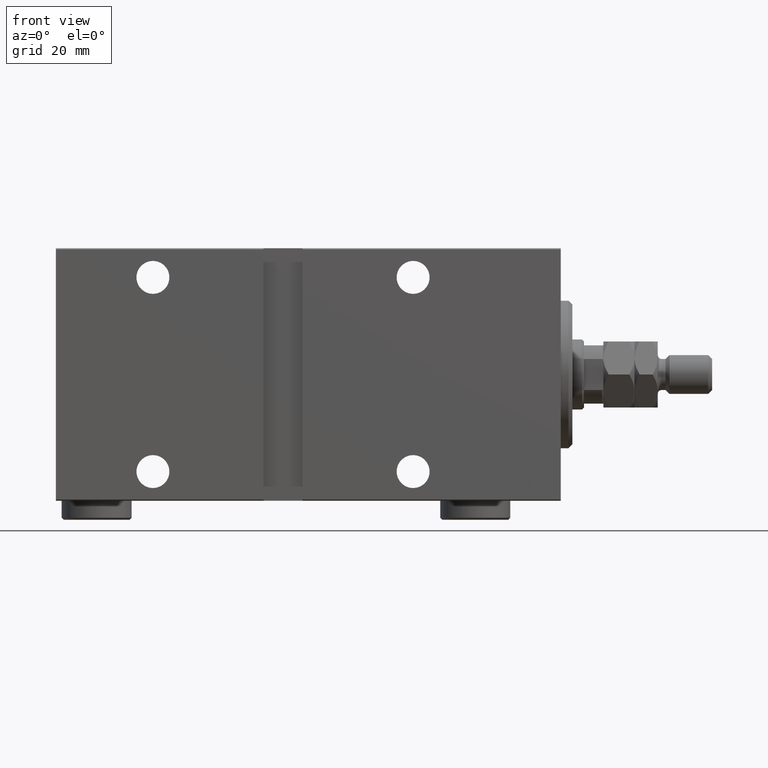
[diagram: clean part render]
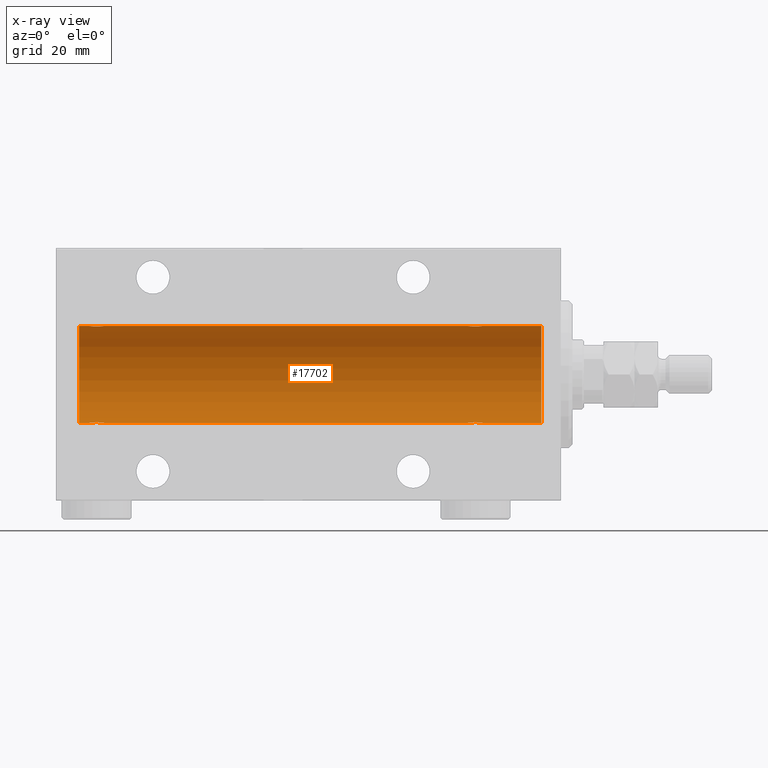
[diagram: x-ray — body ghosted, one internal face saturated and labeled with its STEP entity id]
A machine part, front view, then the same camera in x-ray: the body is ghosted and one INTERNAL B-rep face — a face not visible from any outside direction — is saturated and labeled: STEP entity #17702.
In plain terms, the highlighted cylindrical surface (partial cylindrical patch) has radius 12.5 mm, axis along (1, 0, -0).
Its self-contained STEP definition (entity closure, byte-faithful):
#237 = CARTESIAN_POINT ( 'NONE',  ( 124.0000000000000000, 1.530808498934191521E-15, -12.50000000000000000 ) ) ;
#639 = EDGE_CURVE ( 'NONE', #6510, #24753, #38111, .T. ) ;
#815 = CARTESIAN_POINT ( 'NONE',  ( 21.86910032676576421, -2.000082296475566679, -12.33894933996983490 ) ) ;
#1040 = CARTESIAN_POINT ( 'NONE',  ( 20.99900207901491811, -1.736403706023273097, -12.37902502246767966 ) ) ;
#1279 = CARTESIAN_POINT ( 'NONE',  ( 20.40255225308977671, -1.231226695485372336, -12.44059298055988627 ) ) ;
#1479 = CARTESIAN_POINT ( 'NONE',  ( 118.9830627330237434, -1.936441098420713214, -12.34912369794528963 ) ) ;
#1706 = CARTESIAN_POINT ( 'NONE',  ( 120.7202714989742418, -1.589951752150277509, -12.39868561261689273 ) ) ;
#1943 = DIRECTION ( 'NONE',  ( 0.000000000000000000, 0.000000000000000000, 1.000000000000000000 ) ) ;
#2279 = CARTESIAN_POINT ( 'NONE',  ( 20.00000000000000000, -0.2612140938986765581, 12.50000000000000000 ) ) ;
#2559 = VECTOR ( 'NONE', #22762, 1000.000000000000000 ) ;
#3902 = CARTESIAN_POINT ( 'NONE',  ( 121.5000000000000284, 3.163483401492493339E-15, 12.50000000000000000 ) ) ;
#4130 = CARTESIAN_POINT ( 'NONE',  ( 118.6112527420296772, -1.796480516834681573, 12.37033750336835958 ) ) ;
#4206 = VECTOR ( 'NONE', #40096, 1000.000000000000000 ) ;
#4497 = CARTESIAN_POINT ( 'NONE',  ( 124.0000000000000000, 1.530808498934191521E-15, -12.50000000000000000 ) ) ;
#4741 = CARTESIAN_POINT ( 'NONE',  ( 119.2390650271439370, -1.987194304939082556, -12.34105826212746138 ) ) ;
#4761 = CARTESIAN_POINT ( 'NONE',  ( 22.64643896963591985, -1.897190184049187378, -12.35529285772521924 ) ) ;
#4814 = CARTESIAN_POINT ( 'NONE',  ( 118.2797285010258008, -1.589951752150278397, 12.39868561261688740 ) ) ;
#4840 = AXIS2_PLACEMENT_3D ( 'NONE', #27053, #41267, #1943 ) ;
#4918 = AXIS2_PLACEMENT_3D ( 'NONE', #30456, #34185, #41411 ) ;
#5220 = CARTESIAN_POINT ( 'NONE',  ( 23.94744340572329833, -0.5247436444070325834, -12.49130933415156619 ) ) ;
#5748 = EDGE_CURVE ( 'NONE', #42202, #18718, #19398, .T. ) ;
#5771 = VERTEX_POINT ( 'NONE', #23566 ) ;
#5879 = CARTESIAN_POINT ( 'NONE',  ( 117.5000000000000142, -1.169483437805093529E-14, -12.50000000000000000 ) ) ;
#6226 = CARTESIAN_POINT ( 'NONE',  ( 21.86659749548704212, -1.999916920503819862, 12.33897614545467469 ) ) ;
#6454 = CARTESIAN_POINT ( 'NONE',  ( 23.99999999999998934, -0.2646816682749779659, 12.49999999999999822 ) ) ;
#6460 = CARTESIAN_POINT ( 'NONE',  ( 121.2356307801957769, -1.002396200863557185, -12.46022444231050308 ) ) ;
#6510 = VERTEX_POINT ( 'NONE', #34568 ) ;
#7620 = CARTESIAN_POINT ( 'NONE',  ( 118.8535610303640624, -1.897190184049181161, 12.35529285772521213 ) ) ;
#7853 = CARTESIAN_POINT ( 'NONE',  ( 117.7643692198042658, -1.002396200863564291, 12.46022444231050663 ) ) ;
#8016 = CARTESIAN_POINT ( 'NONE',  ( 117.5000000000000142, -1.169483437805093529E-14, -12.50000000000000000 ) ) ;
#8089 = CARTESIAN_POINT ( 'NONE',  ( 117.9101890977171223, -1.220538259806350778, 12.44075068685996754 ) ) ;
#8141 = VERTEX_POINT ( 'NONE', #28612 ) ;
#8263 = CARTESIAN_POINT ( 'NONE',  ( 23.22027149897420273, -1.589951752150274178, -12.39868561261689273 ) ) ;
#8351 = LINE ( 'NONE', #22531, #2559 ) ;
#8417 = EDGE_CURVE ( 'NONE', #14792, #5771, #25083, .T. ) ;
#8700 = CARTESIAN_POINT ( 'NONE',  ( 118.2814588045806232, -1.591305132013882462, -12.39851226212235957 ) ) ;
#8923 = CARTESIAN_POINT ( 'NONE',  ( 120.0196147235787834, -1.935716533151644825, -12.34923763528285079 ) ) ;
#9031 = CARTESIAN_POINT ( 'NONE',  ( 22.13089967323422158, -2.000082296475567567, 12.33894933996983134 ) ) ;
#9252 = DIRECTION ( 'NONE',  ( -1.000000000000000000, 0.000000000000000000, 0.000000000000000000 ) ) ;
#9359 = EDGE_CURVE ( 'NONE', #26318, #16629, #8351, .T. ) ;
#9385 = CARTESIAN_POINT ( 'NONE',  ( 124.0000000000000000, 0.000000000000000000, 12.50000000000000000 ) ) ;
#9533 = CARTESIAN_POINT ( 'NONE',  ( 5.000000000000004441, 0.000000000000000000, 12.50000000000000000 ) ) ;
#9935 = CARTESIAN_POINT ( 'NONE',  ( 23.21854119541937678, -1.591305132013879131, 12.39851226212236135 ) ) ;
#10713 = ORIENTED_EDGE ( 'NONE', *, *, #21648, .T. ) ;
#11101 = CARTESIAN_POINT ( 'NONE',  ( 19.99999999999999645, -7.265724481447607133E-23, 12.50000000000000000 ) ) ;
#11109 = CARTESIAN_POINT ( 'NONE',  ( 120.8211671285144604, -1.507135374967687458, 12.40915432986586886 ) ) ;
#11203 = CARTESIAN_POINT ( 'NONE',  ( 20.00000000000000000, -0.2646816682749830729, -12.50000000000000000 ) ) ;
#11328 = CARTESIAN_POINT ( 'NONE',  ( 118.1770005689227219, -1.505544071529930639, 12.40934942683854025 ) ) ;
#11446 = EDGE_CURVE ( 'NONE', #8141, #11733, #16569, .T. ) ;
#11733 = VERTEX_POINT ( 'NONE', #37581 ) ;
#11743 = CARTESIAN_POINT ( 'NONE',  ( 23.73563078019576977, -1.002396200863559628, -12.46022444231050663 ) ) ;
#11905 = ORIENTED_EDGE ( 'NONE', *, *, #8417, .F. ) ;
#11950 = CARTESIAN_POINT ( 'NONE',  ( 119.7639137310243882, -1.986793270638199882, -12.34112317291865146 ) ) ;
#12022 = CARTESIAN_POINT ( 'NONE',  ( 117.5000000000000142, -7.266434456262306043E-23, 12.50000000000000000 ) ) ;
#12178 = CARTESIAN_POINT ( 'NONE',  ( 117.4999999999999716, -0.2646816682749930094, -12.49999999999999289 ) ) ;
#12598 = EDGE_LOOP ( 'NONE', ( #24567, #40886, #26666, #10713, #40365, #26357, #32195, #20093, #23382, #11905, #39737, #30287 ) ) ;
#12816 = EDGE_CURVE ( 'NONE', #36914, #8141, #13804, .T. ) ;
#12848 = DIRECTION ( 'NONE',  ( -1.000000000000000000, -0.000000000000000000, -0.000000000000000000 ) ) ;
#12967 = CARTESIAN_POINT ( 'NONE',  ( 124.0000000000000000, 0.000000000000000000, 0.000000000000000000 ) ) ;
#12976 = CARTESIAN_POINT ( 'NONE',  ( 21.73608626897564733, -1.986793270638199882, 12.34112317291865146 ) ) ;
#13053 = VECTOR ( 'NONE', #12848, 1000.000000000000000 ) ;
#13215 = CARTESIAN_POINT ( 'NONE',  ( 21.35356103036408371, -1.897190184049190043, 12.35529285772521391 ) ) ;
#13433 = CARTESIAN_POINT ( 'NONE',  ( 22.88616153879432957, -1.797736511708064366, 12.37015393445321010 ) ) ;
#13439 = CARTESIAN_POINT ( 'NONE',  ( 121.2978560646825912, -0.8858253204747998932, -12.46915613403960776 ) ) ;
#13804 = CIRCLE ( 'NONE', #34604, 12.50000000000000000 ) ;
#13903 = EDGE_CURVE ( 'NONE', #42202, #5771, #21280, .T. ) ;
#14792 = VERTEX_POINT ( 'NONE', #40875 ) ;
#15461 = CARTESIAN_POINT ( 'NONE',  ( 22.88874725797039744, -1.796480516834686680, -12.37033750336835247 ) ) ;
#15512 = CARTESIAN_POINT ( 'NONE',  ( 117.5525565942766946, -0.5247436444070334716, 12.49130933415156441 ) ) ;
#16569 = LINE ( 'NONE', #37526, #13053 ) ;
#16589 = DIRECTION ( 'NONE',  ( -1.000000000000000000, -0.000000000000000000, -0.000000000000000000 ) ) ;
#16629 = VERTEX_POINT ( 'NONE', #25581 ) ;
#16930 = CARTESIAN_POINT ( 'NONE',  ( 20.20214393531741237, -0.8858253204748030019, 12.46915613403961132 ) ) ;
#16936 = CARTESIAN_POINT ( 'NONE',  ( 121.5000000000000284, -0.2612140938986731720, -12.50000000000000533 ) ) ;
#17153 = CARTESIAN_POINT ( 'NONE',  ( 121.0898109022829203, -1.220538259806346115, -12.44075068685996932 ) ) ;
#17702 = ADVANCED_FACE ( 'NONE', ( #40954 ), #41640, .F. ) ;
#18496 = CARTESIAN_POINT ( 'NONE',  ( 23.58981090228289546, -1.220538259806347225, -12.44075068685997287 ) ) ;
#18716 = CARTESIAN_POINT ( 'NONE',  ( 21.73906502714393341, -1.987194304939077671, -12.34105826212746138 ) ) ;
#18718 = VERTEX_POINT ( 'NONE', #9533 ) ;
#18929 = CARTESIAN_POINT ( 'NONE',  ( 117.5533432010162187, -0.5275951738695822124, -12.49118442338578383 ) ) ;
#18947 = CARTESIAN_POINT ( 'NONE',  ( 20.25337863379106551, -1.008535157355842760, -12.46157701909767646 ) ) ;
#19162 = CARTESIAN_POINT ( 'NONE',  ( 120.8229994310773776, -1.505544071529937078, -12.40934942683854381 ) ) ;
#19398 = LINE ( 'NONE', #9385, #32909 ) ;
#19616 = CARTESIAN_POINT ( 'NONE',  ( 120.5034557407669240, -1.734959850168412476, -12.37922718965050528 ) ) ;
#19732 = CARTESIAN_POINT ( 'NONE',  ( 23.74662136620892383, -1.008535157355843648, 12.46157701909767823 ) ) ;
#20093 = ORIENTED_EDGE ( 'NONE', *, *, #5748, .F. ) ;
#20385 = VECTOR ( 'NONE', #28804, 1000.000000000000000 ) ;
#20408 = CARTESIAN_POINT ( 'NONE',  ( 19.99999999999999645, -7.265724481447607133E-23, 12.50000000000000000 ) ) ;
#20706 = DIRECTION ( 'NONE',  ( -1.000000000000000000, -0.000000000000000000, -0.000000000000000000 ) ) ;
#21280 = B_SPLINE_CURVE_WITH_KNOTS ( 'NONE', 3,
 ( #20408, #2279, #44861, #16930, #30423, #44418, #23442, #40914, #38104, #30873, #45098, #13215, #27392, #12976, #6226, #9031, #31109, #45314, #27605, #13433, #37426, #9935, #24114, #44638, #19732, #38325, #6454, #33692 ),
 .UNSPECIFIED., .F., .F.,
 ( 4, 2, 2, 2, 2, 2, 2, 2, 2, 2, 2, 2, 2, 4 ),
 ( 0.006262980370572162822, 0.007045658964677358610, 0.007436998261729958239, 0.007828337558782557867, 0.008219676855835158363, 0.008611016152887758859, 0.009002355449940359355, 0.009393694746992958117, 0.009785034044045558613, 0.01017637334109815911, 0.01056771263815075960, 0.01095905193520336010, 0.01174173052930856803, 0.01252440912341377596 ),
 .UNSPECIFIED. ) ;
#21342 = VECTOR ( 'NONE', #20706, 1000.000000000000000 ) ;
#21389 = CARTESIAN_POINT ( 'NONE',  ( 124.0000000000000000, 1.530808498934191521E-15, -12.50000000000000000 ) ) ;
#21570 = CARTESIAN_POINT ( 'NONE',  ( 120.1442527879773081, -1.897913903092038890, 12.35518060345724933 ) ) ;
#21648 = EDGE_CURVE ( 'NONE', #24753, #44434, #35373, .T. ) ;
#21668 = CARTESIAN_POINT ( 'NONE',  ( 19.99999999999999645, -3.966047509268588167E-15, -12.50000000000000000 ) ) ;
#21798 = CARTESIAN_POINT ( 'NONE',  ( 121.4466567989838524, -0.5275951738695600080, 12.49118442338578561 ) ) ;
#22032 = CARTESIAN_POINT ( 'NONE',  ( 120.0169372669763135, -1.936441098420705220, 12.34912369794528786 ) ) ;
#22064 = EDGE_CURVE ( 'NONE', #44434, #26318, #26901, .T. ) ;
#22189 = CARTESIAN_POINT ( 'NONE',  ( 117.9025522530897661, -1.231226695485379219, -12.44059298055988094 ) ) ;
#22207 = CARTESIAN_POINT ( 'NONE',  ( 24.00000000000000711, -0.2612140938986742267, -12.50000000000000533 ) ) ;
#22263 = CARTESIAN_POINT ( 'NONE',  ( 120.3861615387943544, -1.797736511708053264, 12.37015393445321010 ) ) ;
#22422 = CARTESIAN_POINT ( 'NONE',  ( 118.6138384612056456, -1.797736511708069473, -12.37015393445320477 ) ) ;
#22444 = CARTESIAN_POINT ( 'NONE',  ( 20.78145880458061256, -1.591305132013880685, -12.39851226212235957 ) ) ;
#22495 = CARTESIAN_POINT ( 'NONE',  ( 117.5000000000000142, -0.2612140938986747818, 12.50000000000000000 ) ) ;
#22531 = CARTESIAN_POINT ( 'NONE',  ( 124.0000000000000000, 1.530808498934191521E-15, -12.50000000000000000 ) ) ;
#22664 = CARTESIAN_POINT ( 'NONE',  ( 23.00345574076691690, -1.734959850168409812, -12.37922718965050528 ) ) ;
#22762 = DIRECTION ( 'NONE',  ( -1.000000000000000000, -0.000000000000000000, -0.000000000000000000 ) ) ;
#23382 = ORIENTED_EDGE ( 'NONE', *, *, #13903, .T. ) ;
#23434 = DIRECTION ( 'NONE',  ( 0.000000000000000000, 0.000000000000000000, 1.000000000000000000 ) ) ;
#23442 = CARTESIAN_POINT ( 'NONE',  ( 20.49277848532006274, -1.321088093821079168, 12.43033959299025071 ) ) ;
#23566 = CARTESIAN_POINT ( 'NONE',  ( 24.00000000000000000, -2.019790789754703983E-15, 12.50000000000000000 ) ) ;
#24114 = CARTESIAN_POINT ( 'NONE',  ( 23.32116712851443552, -1.507135374967700114, 12.40915432986586708 ) ) ;
#24567 = ORIENTED_EDGE ( 'NONE', *, *, #12816, .F. ) ;
#24753 = VERTEX_POINT ( 'NONE', #5879 ) ;
#25083 = LINE ( 'NONE', #35323, #20385 ) ;
#25292 = CARTESIAN_POINT ( 'NONE',  ( 121.0974477469102766, -1.231226695485355904, 12.44059298055988450 ) ) ;
#25581 = CARTESIAN_POINT ( 'NONE',  ( 5.000000000000004441, 1.530808498934191521E-15, -12.50000000000000000 ) ) ;
#25666 = CARTESIAN_POINT ( 'NONE',  ( 119.3691003267658459, -2.000082296475571120, -12.33894933996983134 ) ) ;
#25899 = CARTESIAN_POINT ( 'NONE',  ( 118.4990020790149146, -1.736403706023274651, -12.37902502246767611 ) ) ;
#26147 = CARTESIAN_POINT ( 'NONE',  ( 22.26391373102435622, -1.986793270638196995, -12.34112317291864791 ) ) ;
#26200 = CARTESIAN_POINT ( 'NONE',  ( 117.7021439353173946, -0.8858253204748003373, 12.46915613403960421 ) ) ;
#26318 = VERTEX_POINT ( 'NONE', #26640 ) ;
#26354 = CARTESIAN_POINT ( 'NONE',  ( 120.1464389696359518, -1.897190184049184269, -12.35529285772521391 ) ) ;
#26357 = ORIENTED_EDGE ( 'NONE', *, *, #9359, .T. ) ;
#26640 = CARTESIAN_POINT ( 'NONE',  ( 19.99999999999999645, -3.966047509268588167E-15, -12.50000000000000000 ) ) ;
#26666 = ORIENTED_EDGE ( 'NONE', *, *, #639, .T. ) ;
#26901 = B_SPLINE_CURVE_WITH_KNOTS ( 'NONE', 3,
 ( #40595, #22207, #5220, #33600, #11743, #18496, #32681, #43857, #8263, #22664, #15461, #4761, #36420, #26147, #40366, #815, #18716, #29407, #40134, #32907, #1040, #22444, #36646, #1279, #18947, #35652, #11203, #21668 ),
 .UNSPECIFIED., .F., .F.,
 ( 4, 2, 2, 2, 2, 2, 2, 2, 2, 2, 2, 2, 2, 4 ),
 ( 0.006262980370572176700, 0.007045658964677374222, 0.007436998261729974719, 0.007828337558782575215, 0.008219676855835175711, 0.008611016152887777941, 0.009002355449940378437, 0.009393694746992978933, 0.009785034044045579429, 0.01017637334109817993, 0.01056771263815078042, 0.01095905193520338092, 0.01174173052930859058, 0.01252440912341379851 ),
 .UNSPECIFIED. ) ;
#27053 = CARTESIAN_POINT ( 'NONE',  ( 5.000000000000004441, 0.000000000000000000, 0.000000000000000000 ) ) ;
#27392 = CARTESIAN_POINT ( 'NONE',  ( 21.48038527642126283, -1.935716533151644381, 12.34923763528284901 ) ) ;
#27605 = CARTESIAN_POINT ( 'NONE',  ( 22.64425278797729746, -1.897913903092049104, 12.35518060345724933 ) ) ;
#28612 = CARTESIAN_POINT ( 'NONE',  ( 124.0000000000000000, 0.000000000000000000, 12.50000000000000000 ) ) ;
#28785 = CARTESIAN_POINT ( 'NONE',  ( 118.9803852764212735, -1.935716533151639718, 12.34923763528284546 ) ) ;
#28804 = DIRECTION ( 'NONE',  ( -1.000000000000000000, -0.000000000000000000, -0.000000000000000000 ) ) ;
#29407 = CARTESIAN_POINT ( 'NONE',  ( 21.48306273302371494, -1.936441098420707663, -12.34912369794528431 ) ) ;
#29462 = CARTESIAN_POINT ( 'NONE',  ( 119.6308996732342393, -2.000082296475560906, 12.33894933996983490 ) ) ;
#29696 = CARTESIAN_POINT ( 'NONE',  ( 119.2360862689757113, -1.986793270638193443, 12.34112317291865146 ) ) ;
#30232 = CARTESIAN_POINT ( 'NONE',  ( 24.00000000000000000, 1.530808426277417854E-15, -12.50000000000000000 ) ) ;
#30287 = ORIENTED_EDGE ( 'NONE', *, *, #11446, .F. ) ;
#30311 = CARTESIAN_POINT ( 'NONE',  ( 118.8557472120227345, -1.897913903092052657, -12.35518060345725111 ) ) ;
#30423 = CARTESIAN_POINT ( 'NONE',  ( 20.26436921980423378, -1.002396200863559850, 12.46022444231050841 ) ) ;
#30456 = CARTESIAN_POINT ( 'NONE',  ( 124.0000000000000000, 0.000000000000000000, 0.000000000000000000 ) ) ;
#30873 = CARTESIAN_POINT ( 'NONE',  ( 20.99654425923307599, -1.734959850168413142, 12.37922718965050528 ) ) ;
#31109 = CARTESIAN_POINT ( 'NONE',  ( 22.26093497285606304, -1.987194304939079004, 12.34105826212746138 ) ) ;
#31116 = CARTESIAN_POINT ( 'NONE',  ( 121.4474434057233339, -0.5247436444070315842, -12.49130933415156797 ) ) ;
#31328 = CARTESIAN_POINT ( 'NONE',  ( 121.0072215146799408, -1.321088093821078502, -12.43033959299025071 ) ) ;
#32076 = EDGE_CURVE ( 'NONE', #36914, #6510, #36386, .T. ) ;
#32195 = ORIENTED_EDGE ( 'NONE', *, *, #37772, .T. ) ;
#32272 = CARTESIAN_POINT ( 'NONE',  ( 117.9927784853201018, -1.321088093821075393, 12.43033959299025426 ) ) ;
#32681 = CARTESIAN_POINT ( 'NONE',  ( 23.50722151467993726, -1.321088093821075837, -12.43033959299025248 ) ) ;
#32907 = CARTESIAN_POINT ( 'NONE',  ( 21.11383846120565977, -1.797736511708062590, -12.37015393445320299 ) ) ;
#32909 = VECTOR ( 'NONE', #16589, 1000.000000000000000 ) ;
#33600 = CARTESIAN_POINT ( 'NONE',  ( 23.79785606468258052, -0.8858253204748001153, -12.46915613403960954 ) ) ;
#33692 = CARTESIAN_POINT ( 'NONE',  ( 24.00000000000000000, -2.019790789754703983E-15, 12.50000000000000000 ) ) ;
#34185 = DIRECTION ( 'NONE',  ( -1.000000000000000000, -0.000000000000000000, -0.000000000000000000 ) ) ;
#34568 = CARTESIAN_POINT ( 'NONE',  ( 121.5000000000000284, 1.530808426268740384E-15, -12.50000000000000000 ) ) ;
#34604 = AXIS2_PLACEMENT_3D ( 'NONE', #12967, #9252, #23434 ) ;
#35323 = CARTESIAN_POINT ( 'NONE',  ( 124.0000000000000000, 0.000000000000000000, 12.50000000000000000 ) ) ;
#35373 = LINE ( 'NONE', #237, #21342 ) ;
#35652 = CARTESIAN_POINT ( 'NONE',  ( 20.05334320101619738, -0.5275951738695680016, -12.49118442338578561 ) ) ;
#35785 = CARTESIAN_POINT ( 'NONE',  ( 121.5000000000000568, -0.2646816682749792982, 12.50000000000000178 ) ) ;
#36386 = LINE ( 'NONE', #4497, #4206 ) ;
#36402 = CARTESIAN_POINT ( 'NONE',  ( 120.3887472579704223, -1.796480516834683350, -12.37033750336835602 ) ) ;
#36420 = CARTESIAN_POINT ( 'NONE',  ( 22.51961472357874072, -1.935716533151642604, -12.34923763528285257 ) ) ;
#36646 = CARTESIAN_POINT ( 'NONE',  ( 20.67883287148555382, -1.507135374967702113, -12.40915432986587064 ) ) ;
#36704 = CARTESIAN_POINT ( 'NONE',  ( 120.7185411954193910, -1.591305132013873358, 12.39851226212235957 ) ) ;
#36914 = VERTEX_POINT ( 'NONE', #21389 ) ;
#37089 = CARTESIAN_POINT ( 'NONE',  ( 117.7533786337911152, -1.008535157355854750, -12.46157701909767823 ) ) ;
#37426 = CARTESIAN_POINT ( 'NONE',  ( 23.00099792098507834, -1.736403706023272875, 12.37902502246767789 ) ) ;
#37526 = CARTESIAN_POINT ( 'NONE',  ( 124.0000000000000000, 0.000000000000000000, 12.50000000000000000 ) ) ;
#37581 = CARTESIAN_POINT ( 'NONE',  ( 121.5000000000000284, 3.163483401492493339E-15, 12.50000000000000000 ) ) ;
#37772 = EDGE_CURVE ( 'NONE', #16629, #18718, #41968, .T. ) ;
#38104 = CARTESIAN_POINT ( 'NONE',  ( 20.77972850102579372, -1.589951752150277953, 12.39868561261689095 ) ) ;
#38111 = B_SPLINE_CURVE_WITH_KNOTS ( 'NONE', 3,
 ( #45320, #16936, #31116, #13439, #6460, #17153, #31328, #19162, #1706, #19616, #36402, #26354, #8923, #11950, #40574, #25666, #4741, #1479, #30311, #22422, #25899, #8700, #44527, #22189, #37089, #18929, #12178, #8016 ),
 .UNSPECIFIED., .F., .F.,
 ( 4, 2, 2, 2, 2, 2, 2, 2, 2, 2, 2, 2, 2, 4 ),
 ( 0.006262980370572161955, 0.007045658964677351671, 0.007436998261729953902, 0.007828337558782556133, 0.008219676855835158363, 0.008611016152887760594, 0.009002355449940364560, 0.009393694746992966790, 0.009785034044045570756, 0.01017637334109817299, 0.01056771263815077522, 0.01095905193520337745, 0.01174173052930858364, 0.01252440912341378984 ),
 .UNSPECIFIED. ) ;
#38325 = CARTESIAN_POINT ( 'NONE',  ( 23.94665679898379906, -0.5275951738695691118, 12.49118442338578561 ) ) ;
#39501 = CARTESIAN_POINT ( 'NONE',  ( 118.4965442592331613, -1.734959850168412254, 12.37922718965051061 ) ) ;
#39737 = ORIENTED_EDGE ( 'NONE', *, *, #43201, .T. ) ;
#40096 = DIRECTION ( 'NONE',  ( -1.000000000000000000, -0.000000000000000000, -0.000000000000000000 ) ) ;
#40134 = CARTESIAN_POINT ( 'NONE',  ( 21.35574721202270254, -1.897913903092048216, -12.35518060345725289 ) ) ;
#40189 = CARTESIAN_POINT ( 'NONE',  ( 119.3665974954870705, -1.999916920503812534, 12.33897614545467647 ) ) ;
#40365 = ORIENTED_EDGE ( 'NONE', *, *, #22064, .T. ) ;
#40366 = CARTESIAN_POINT ( 'NONE',  ( 22.13340250451295077, -1.999916920503817641, -12.33897614545467469 ) ) ;
#40417 = CARTESIAN_POINT ( 'NONE',  ( 119.7609349728560630, -1.987194304939074341, 12.34105826212746138 ) ) ;
#40574 = CARTESIAN_POINT ( 'NONE',  ( 119.6334025045129863, -1.999916920503819862, -12.33897614545467469 ) ) ;
#40595 = CARTESIAN_POINT ( 'NONE',  ( 24.00000000000000000, 1.530808426277417854E-15, -12.50000000000000000 ) ) ;
#40875 = CARTESIAN_POINT ( 'NONE',  ( 117.5000000000000142, -7.266434456262306043E-23, 12.50000000000000000 ) ) ;
#40886 = ORIENTED_EDGE ( 'NONE', *, *, #32076, .T. ) ;
#40914 = CARTESIAN_POINT ( 'NONE',  ( 20.67700056892266502, -1.505544071529936634, 12.40934942683854025 ) ) ;
#40954 = FACE_OUTER_BOUND ( 'NONE', #12598, .T. ) ;
#41267 = DIRECTION ( 'NONE',  ( -1.000000000000000000, 0.000000000000000000, 0.000000000000000000 ) ) ;
#41411 = DIRECTION ( 'NONE',  ( 0.000000000000000000, 0.000000000000000000, 1.000000000000000000 ) ) ;
#41640 = CYLINDRICAL_SURFACE ( 'NONE', #4918, 12.50000000000000000 ) ;
#41968 = CIRCLE ( 'NONE', #4840, 12.50000000000000000 ) ;
#41986 = B_SPLINE_CURVE_WITH_KNOTS ( 'NONE', 3,
 ( #12022, #22495, #15512, #26200, #7853, #8089, #32272, #11328, #4814, #39501, #4130, #7620, #28785, #29696, #40189, #29462, #40417, #22032, #21570, #22263, #43001, #36704, #11109, #25292, #43224, #21798, #35785, #3902 ),
 .UNSPECIFIED., .F., .F.,
 ( 4, 2, 2, 2, 2, 2, 2, 2, 2, 2, 2, 2, 2, 4 ),
 ( 0.006262980370572151546, 0.007045658964677331722, 0.007436998261729929616, 0.007828337558782528377, 0.008219676855835125404, 0.008611016152887724165, 0.009002355449940321191, 0.009393694746992919953, 0.009785034044045518714, 0.01017637334109811748, 0.01056771263815071624, 0.01095905193520331326, 0.01174173052930854028, 0.01252440912341376555 ),
 .UNSPECIFIED. ) ;
#42202 = VERTEX_POINT ( 'NONE', #11101 ) ;
#43001 = CARTESIAN_POINT ( 'NONE',  ( 120.5009979209850997, -1.736403706023266658, 12.37902502246767789 ) ) ;
#43201 = EDGE_CURVE ( 'NONE', #14792, #11733, #41986, .T. ) ;
#43224 = CARTESIAN_POINT ( 'NONE',  ( 121.2466213662089842, -1.008535157355832768, 12.46157701909768178 ) ) ;
#43857 = CARTESIAN_POINT ( 'NONE',  ( 23.32299943107733498, -1.505544071529932637, -12.40934942683853848 ) ) ;
#44418 = CARTESIAN_POINT ( 'NONE',  ( 20.41018909771709744, -1.220538259806348114, 12.44075068685996754 ) ) ;
#44434 = VERTEX_POINT ( 'NONE', #30232 ) ;
#44527 = CARTESIAN_POINT ( 'NONE',  ( 118.1788328714855822, -1.507135374967708552, -12.40915432986586531 ) ) ;
#44638 = CARTESIAN_POINT ( 'NONE',  ( 23.59744774691022684, -1.231226695485370337, 12.44059298055987917 ) ) ;
#44861 = CARTESIAN_POINT ( 'NONE',  ( 20.05255659427669812, -0.5247436444070349149, 12.49130933415156974 ) ) ;
#45098 = CARTESIAN_POINT ( 'NONE',  ( 21.11125274202960256, -1.796480516834689567, 12.37033750336835602 ) ) ;
#45314 = CARTESIAN_POINT ( 'NONE',  ( 22.51693726697628506, -1.936441098420709439, 12.34912369794528786 ) ) ;
#45320 = CARTESIAN_POINT ( 'NONE',  ( 121.5000000000000284, 1.530808426268740384E-15, -12.50000000000000000 ) ) ;